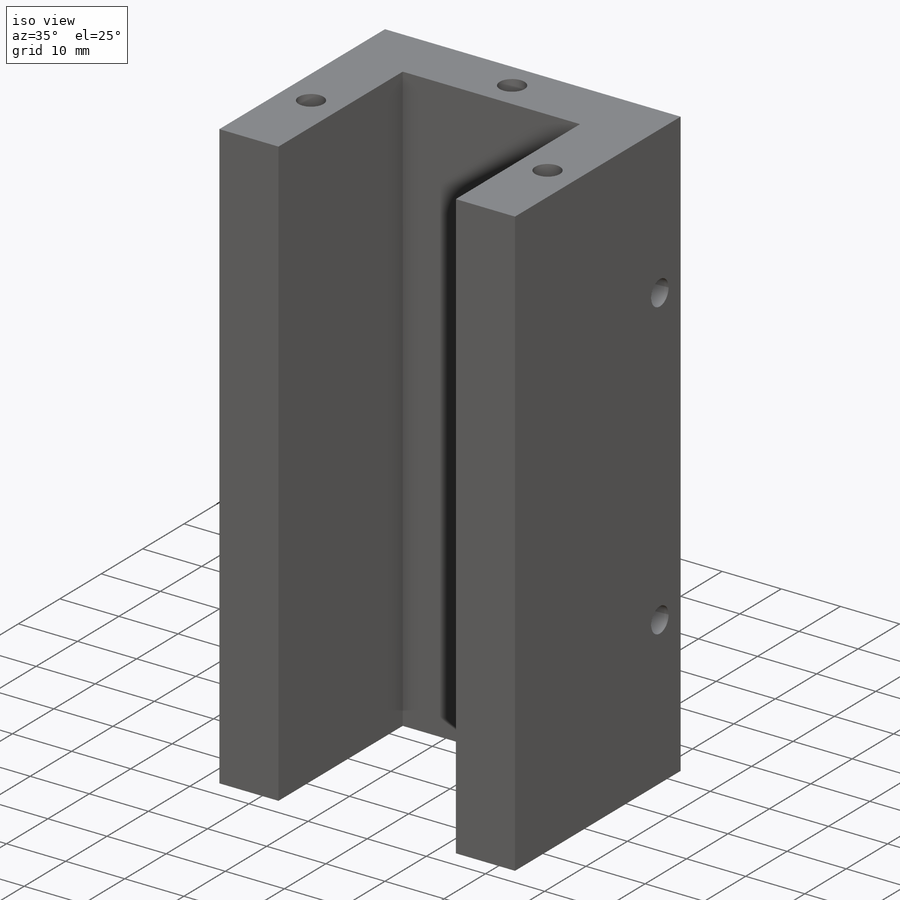
[diagram: iso view]
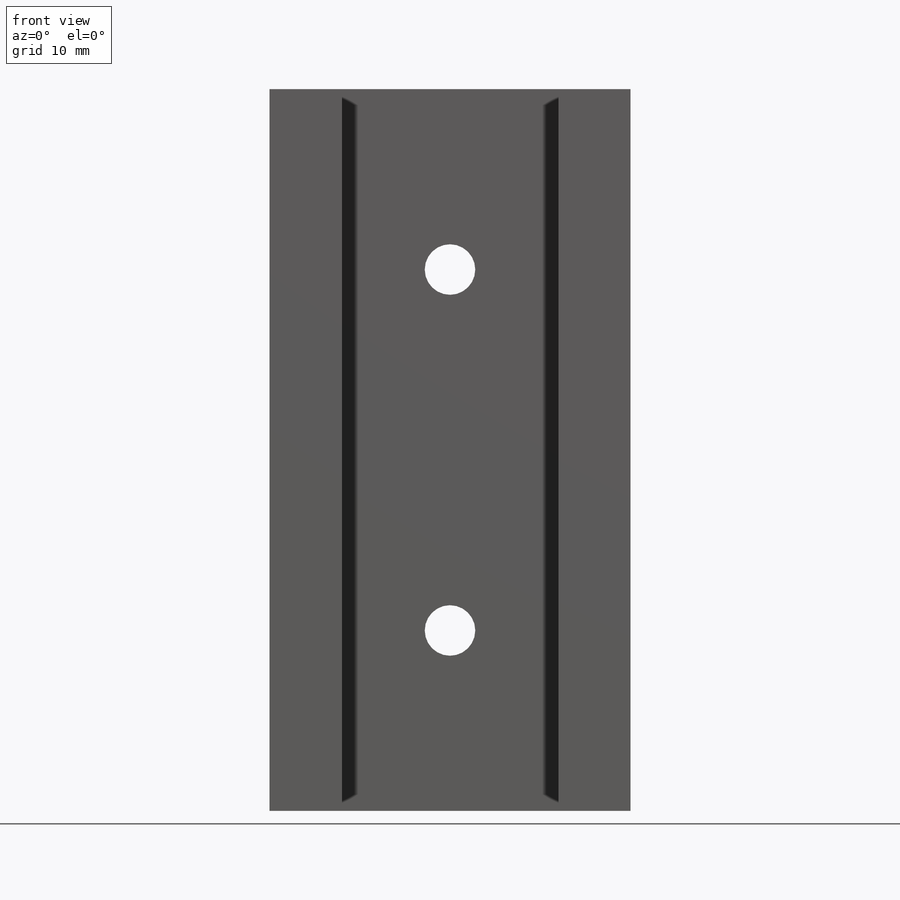
[diagram: front view]
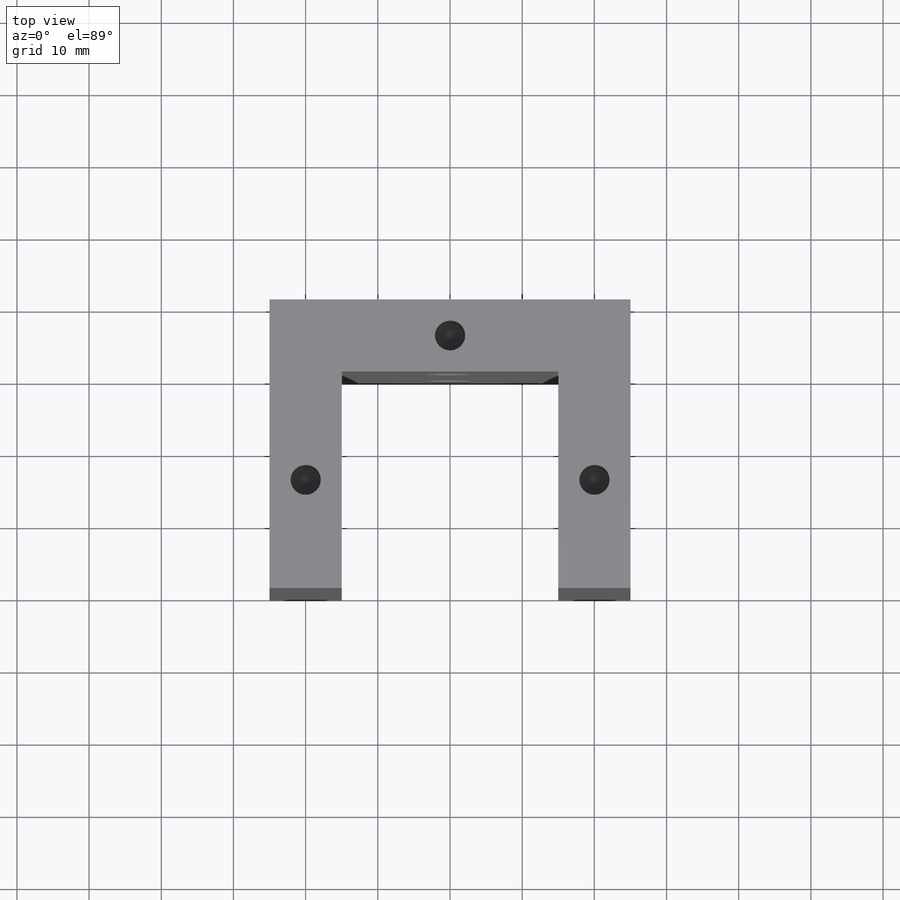
[diagram: top view]
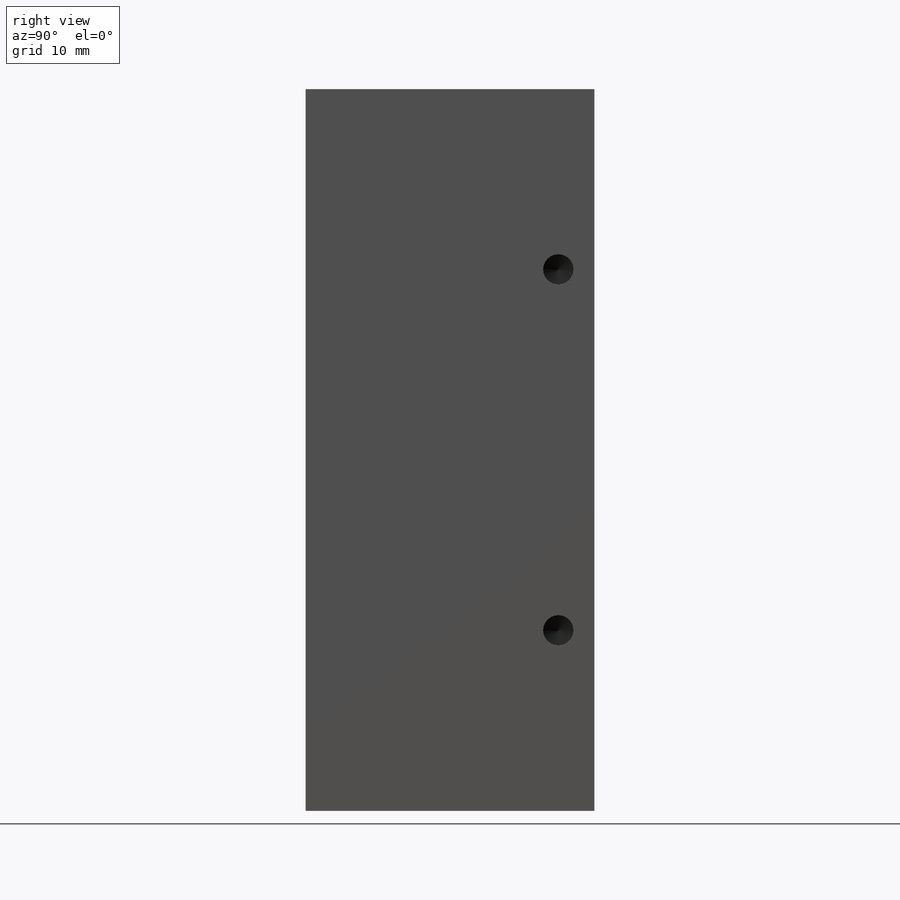
[diagram: right view]
SOLIDWORKS PART (.sldprt)
format: sldprt  version: not decoded by parser v0  size: 374,784 bytes
history: native  units: mm
features: sketch x11, thread x10, hole x4, cut_extrude x2, material x1, extrude x1 (+11 scaffold rows collapsed)
feature tree (40):
  scaffold x11  (default folders/planes/origin — collapsed)
  material  "Material <not specified>"
  sketch  "Sketch1"  dims[D1=50.0mm D2=40.0mm]
  extrude  "Boss-Extrude1"  Depth=100mm
  sketch  "Sketch2"  dims[D1=30.0mm D2=30.0mm D3=10.0mm]
  cut_extrude  "Cut-Extrude1"  Depth=100mm
  sketch  "Sketch3"  dims[D1=7.0mm D2=7.0mm D3=50.0mm D4=25.0mm D5=25.0mm]
  cut_extrude  "Cut-Extrude2"  [1 undecoded]
  hole  "M5x0.8 Tapped Hole1"  Diameter=4.2mm Depth=14mm
  sketch  "Sketch5"  dims[D1=5.0mm D2=5.0mm D3=15.0mm D4=15.0mm D5=5.0mm D6=25.0mm]
  sketch  "Sketch4"  dims[hole-wizard template sketch: 50 standard entries collapsed; hole parameters above]
  thread  "Hole Thread1"  Diameter=10mm  [1 undecoded]
  thread  "Hole Thread2"  Diameter=10mm  [1 undecoded]
  thread  "Hole Thread3"  Diameter=10mm  [1 undecoded]
  hole  "M5x0.8 Tapped Hole2"  Diameter=4.2mm Depth=14mm
  sketch  "Sketch9"  dims[D1=5.0mm D2=25.0mm]
  sketch  "Sketch8"  dims[hole-wizard template sketch: 50 standard entries collapsed; hole parameters above]
  thread  "Hole Thread4"  Diameter=10mm  [1 undecoded]
  thread  "Hole Thread5"  Diameter=10mm  [1 undecoded]
  thread  "Hole Thread11"  Diameter=10mm  [1 undecoded]
  hole  "M5x0.8 Tapped Hole3"  Diameter=4.2mm Depth=14mm
  sketch  "Sketch11"  dims[D1=5.0mm D2=25.0mm D3=5.0mm D4=25.0mm]
  sketch  "Sketch10"  dims[hole-wizard template sketch: 50 standard entries collapsed; hole parameters above]
  thread  "Hole Thread7"  Diameter=10mm  [1 undecoded]
  thread  "Hole Thread8"  Diameter=10mm  [1 undecoded]
  hole  "M5x0.8 Tapped Hole4"  Diameter=4.2mm Depth=14mm
  sketch  "Sketch13"  dims[D1=5.0mm D2=5.0mm D3=25.0mm D4=25.0mm]
  sketch  "Sketch12"  dims[hole-wizard template sketch: 50 standard entries collapsed; hole parameters above]
  thread  "Hole Thread9"  Diameter=10mm  [1 undecoded]
  thread  "Hole Thread10"  Diameter=10mm  [1 undecoded]
decode coverage: 27 of 28 modeling features carry decoded parameters
note: ~ marks probable driven/reference dimensions
note: 11 parameter values undecoded
summary: Diameter pulled from absorbed wizard sketch
note: suppression state not decoded; provenance and decode notes live in map.json
